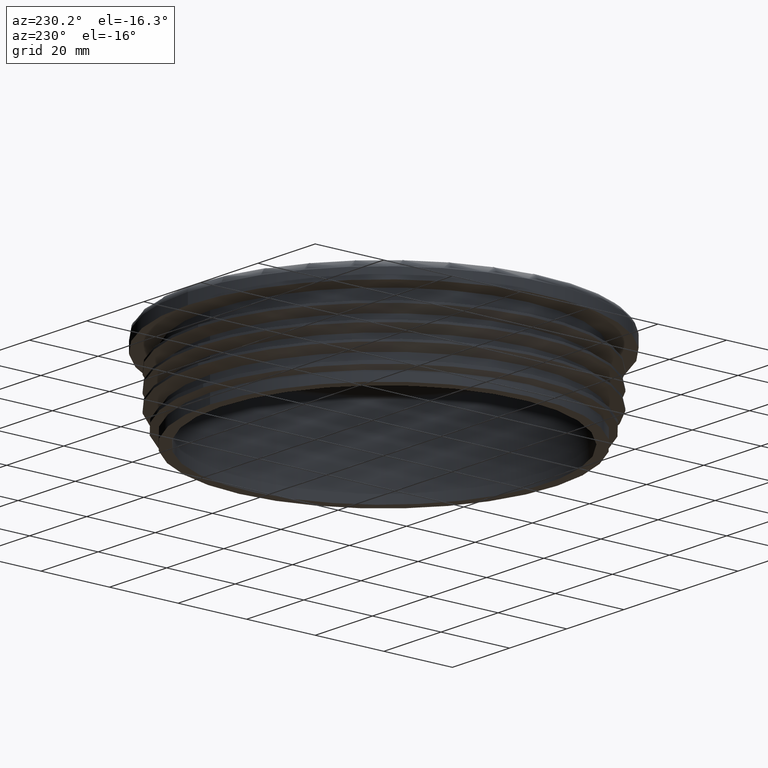
[diagram: clean part render]
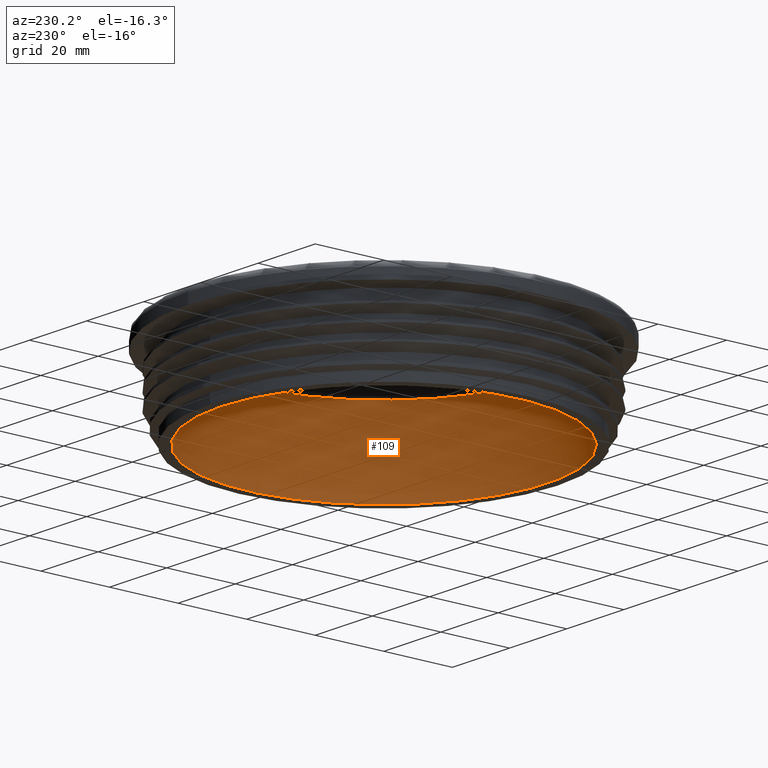
[diagram: same view with one face highlighted and labeled with its STEP entity id]
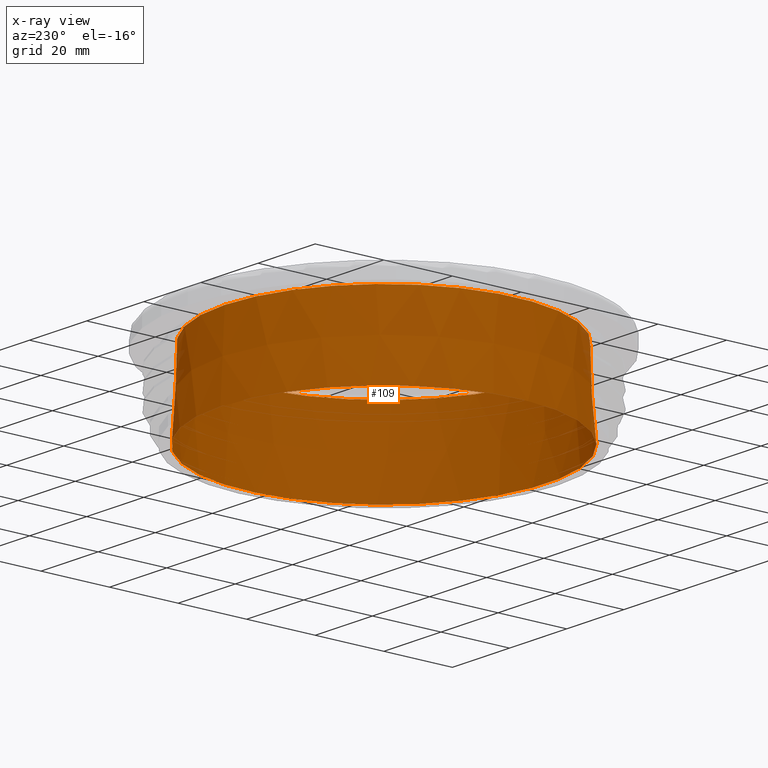
[diagram: x-ray of the same camera — body ghosted, the highlighted face saturated]
A machine part, auxiliary view. The second image highlights one B-rep face of the part: STEP entity #109.
The next image is the same camera in x-ray: the body ghosted, the highlighted face saturated — about 0% of this face is hidden behind the body in this view.
In plain terms, the highlighted conical surface has half-angle 3 deg.
Its self-contained STEP definition (entity closure, byte-faithful):
#109 = ADVANCED_FACE( '', ( #279, #280 ), #281, .F. );
#279 = FACE_BOUND( '', #623, .T. );
#280 = FACE_OUTER_BOUND( '', #624, .T. );
#281 = CONICAL_SURFACE( '', #625, 47.6500000000000, 0.0523598775598300 );
#623 = EDGE_LOOP( '', ( #1242 ) );
#624 = EDGE_LOOP( '', ( #1243 ) );
#625 = AXIS2_PLACEMENT_3D( '', #1244, #1245, #1246 );
#1242 = ORIENTED_EDGE( '', *, *, #1816, .F. );
#1243 = ORIENTED_EDGE( '', *, *, #1815, .T. );
#1244 = CARTESIAN_POINT( '', ( 0.000000000000000, -1.34706698920462E-015, 0.000000000000000 ) );
#1245 = DIRECTION( '', ( 0.000000000000000, -6.12303176911189E-017, -1.00000000000000 ) );
#1246 = DIRECTION( '', ( 0.000000000000000, 1.00000000000000, -6.12303176911189E-017 ) );
#1815 = EDGE_CURVE( '', #2142, #2142, #2143, .T. );
#1816 = EDGE_CURVE( '', #2144, #2144, #2145, .T. );
#2142 = VERTEX_POINT( '', #3272 );
#2143 = CIRCLE( '', #3273, 47.6500000000000 );
#2144 = VERTEX_POINT( '', #3274 );
#2145 = CIRCLE( '', #3275, 46.3894704859637 );
#3272 = CARTESIAN_POINT( '', ( 0.000000000000000, 47.6500000000000, -2.91762463798181E-015 ) );
#3273 = AXIS2_PLACEMENT_3D( '', #3769, #3770, #3771 );
#3274 = CARTESIAN_POINT( '', ( 0.000000000000000, 46.3894704859637, 24.0523359562429 ) );
#3275 = AXIS2_PLACEMENT_3D( '', #3772, #3773, #3774 );
#3769 = CARTESIAN_POINT( '', ( 0.000000000000000, -1.34706698920462E-015, 0.000000000000000 ) );
#3770 = DIRECTION( '', ( 0.000000000000000, -6.12303176911189E-017, -1.00000000000000 ) );
#3771 = DIRECTION( '', ( 0.000000000000000, 1.00000000000000, -6.12303176911189E-017 ) );
#3772 = CARTESIAN_POINT( '', ( 0.000000000000000, 1.25665182609661E-016, 24.0523359562429 ) );
#3773 = DIRECTION( '', ( 0.000000000000000, -6.12303176911189E-017, -1.00000000000000 ) );
#3774 = DIRECTION( '', ( 0.000000000000000, 1.00000000000000, -6.12303176911189E-017 ) );